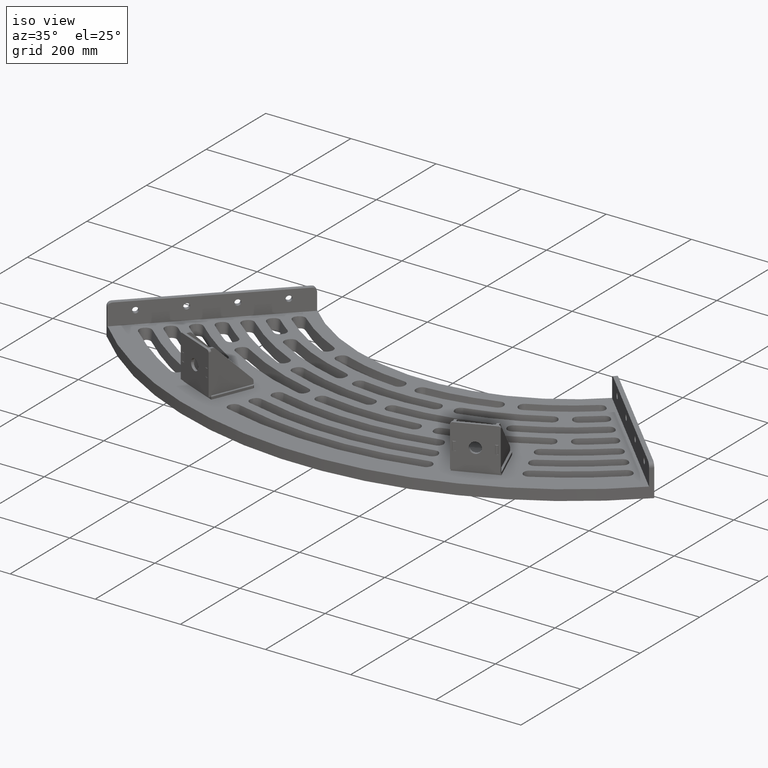
[diagram: clean part render]
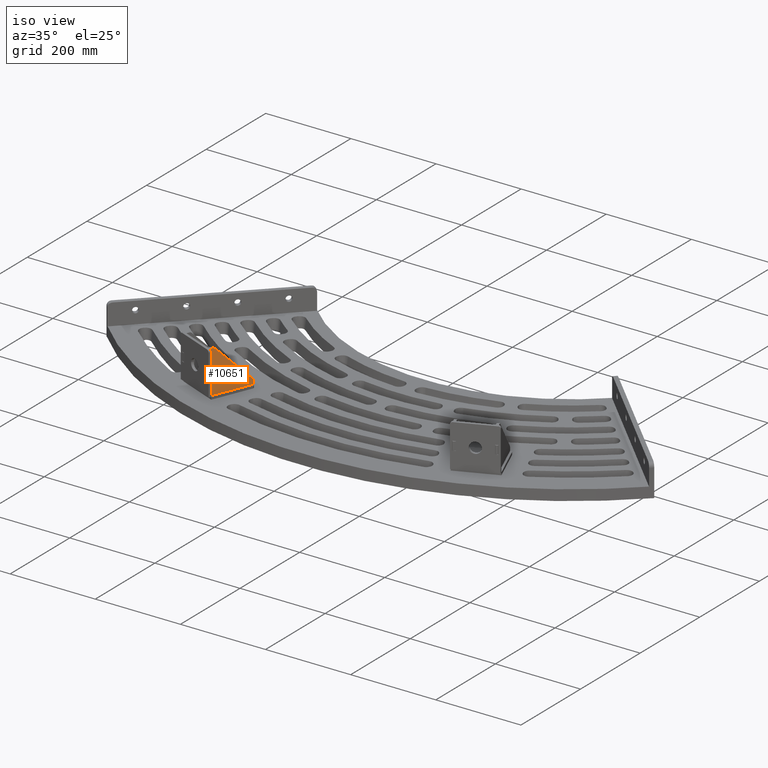
[diagram: same view with one face highlighted and labeled with its STEP entity id]
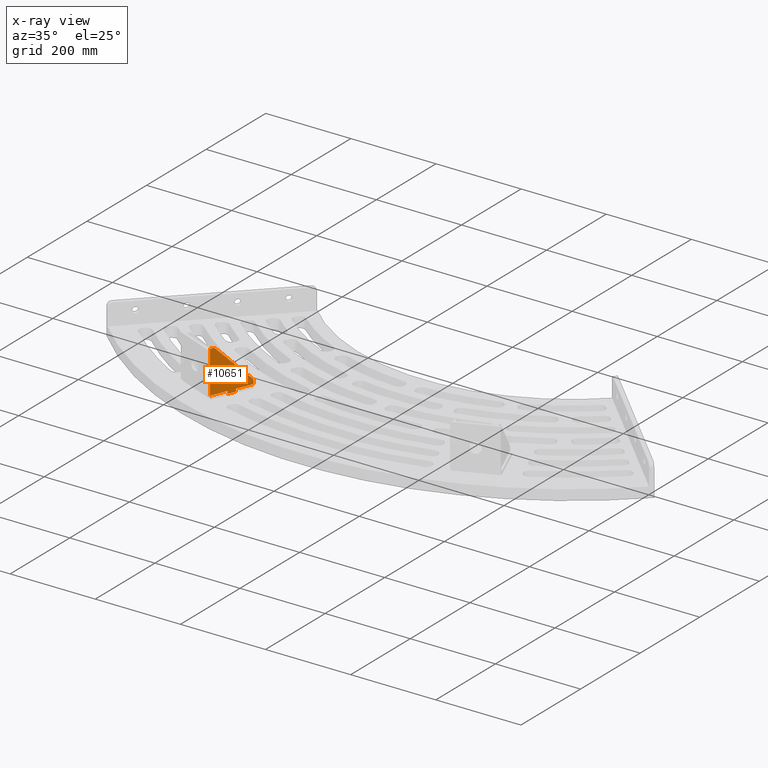
[diagram: x-ray of the same camera — body ghosted, the highlighted face saturated]
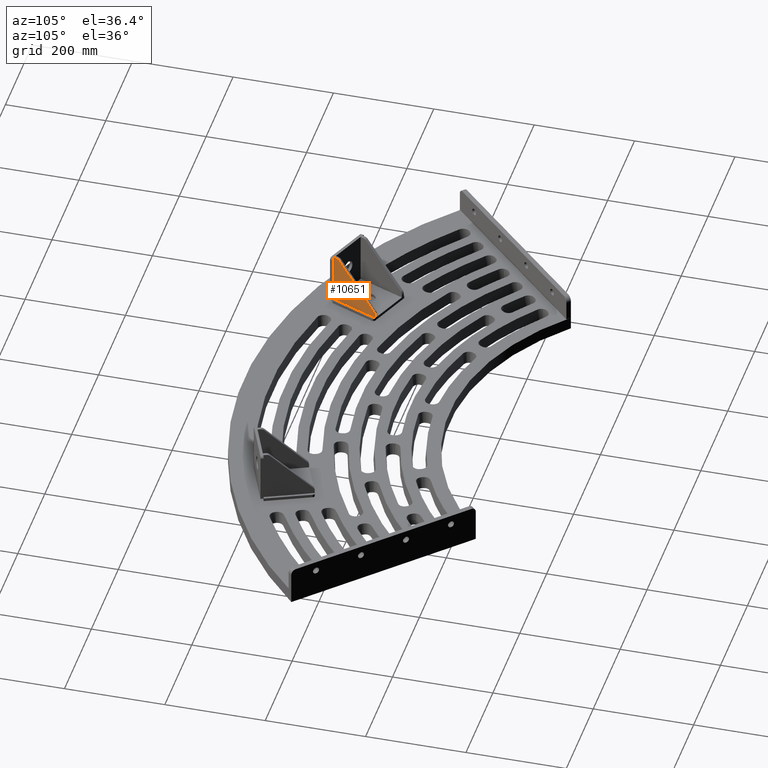
[diagram: same view with one face highlighted and labeled with its STEP entity id]
A machine part, iso view. The second image highlights one B-rep face of the part: STEP entity #10651.
The next image is the same camera in x-ray: the body ghosted, the highlighted face saturated — about 0% of this face is hidden behind the body in this view.
A second angle (auxiliary view) of the same face is appended — the face is thin or edge-on in the first view.
In plain terms, the highlighted planar face has unit normal (-0.9239, 0.3827, 0).
Its self-contained STEP definition (entity closure, byte-faithful):
#3 = EDGE_CURVE ( 'NONE', #6927, #11972, #8665, .T. ) ;
#21 = CARTESIAN_POINT ( 'NONE',  ( 99.99999999999997158, 9.999999999999991118, 1.942890293094023946E-13 ) ) ;
#30 = LINE ( 'NONE', #2830, #9793 ) ;
#90 = DIRECTION ( 'NONE',  ( -3.978414497066059672E-35, 5.700752635386218125E-32, 1.000000000000000000 ) ) ;
#106 = CARTESIAN_POINT ( 'NONE',  ( 39.99999999999970157, -4.999999999999997335, -1.665334536937734811E-13 ) ) ;
#159 = ORIENTED_EDGE ( 'NONE', *, *, #3751, .T. ) ;
#177 = CARTESIAN_POINT ( 'NONE',  ( 97.07106781186503497, 12.92893218813452272, 3.053113317719180486E-13 ) ) ;
#210 = EDGE_CURVE ( 'NONE', #10424, #8888, #1489, .T. ) ;
#326 = CARTESIAN_POINT ( 'NONE',  ( -5.000000000000004441, 58.99999999999997158, 1.110223024625156540E-13 ) ) ;
#358 = EDGE_CURVE ( 'NONE', #4559, #5488, #3684, .T. ) ;
#422 = CARTESIAN_POINT ( 'NONE',  ( -6.000000000000782485, 58.99999999999997158, -3.885780586188047891E-13 ) ) ;
#519 = VECTOR ( 'NONE', #4961, 1000.000000000000000 ) ;
#547 = ORIENTED_EDGE ( 'NONE', *, *, #8252, .F. ) ;
#647 = VERTEX_POINT ( 'NONE', #9103 ) ;
#699 = VECTOR ( 'NONE', #6743, 1000.000000000000000 ) ;
#703 = CARTESIAN_POINT ( 'NONE',  ( -5.000000000000559552, 41.00000000000000711, -2.775557561562891351E-13 ) ) ;
#727 = PLANE ( 'NONE',  #7112 ) ;
#828 = CARTESIAN_POINT ( 'NONE',  ( 89.99999999999963052, 5.857864376269037443, -8.326672684688674053E-14 ) ) ;
#850 = VERTEX_POINT ( 'NONE', #106 ) ;
#853 = DIRECTION ( 'NONE',  ( -1.000000000000000000, -3.620748295448003404E-32, 3.978414497066003544E-35 ) ) ;
#905 = CARTESIAN_POINT ( 'NONE',  ( 99.99999999999997158, 5.857864376269037443, 1.942890293094023946E-13 ) ) ;
#1165 = LINE ( 'NONE', #6879, #519 ) ;
#1253 = DIRECTION ( 'NONE',  ( -1.000000000000000000, 0.000000000000000000, 0.000000000000000000 ) ) ;
#1283 = EDGE_CURVE ( 'NONE', #11972, #10424, #8946, .T. ) ;
#1349 = VERTEX_POINT ( 'NONE', #2539 ) ;
#1489 = LINE ( 'NONE', #5279, #6400 ) ;
#1507 = CARTESIAN_POINT ( 'NONE',  ( 59.99999999999994316, -11.99999999999999645, -1.387778780781445676E-13 ) ) ;
#1915 = ORIENTED_EDGE ( 'NONE', *, *, #8299, .T. ) ;
#1979 = CARTESIAN_POINT ( 'NONE',  ( 5.857864376268673290, 99.99999999999998579, -1.665334536937734811E-13 ) ) ;
#2055 = CARTESIAN_POINT ( 'NONE',  ( 0.000000000000000000, 0.000000000000000000, 0.000000000000000000 ) ) ;
#2185 = ORIENTED_EDGE ( 'NONE', *, *, #6597, .T. ) ;
#2195 = DIRECTION ( 'NONE',  ( -1.000000000000000000, 0.000000000000000000, 0.000000000000000000 ) ) ;
#2232 = EDGE_CURVE ( 'NONE', #3571, #10714, #4008, .T. ) ;
#2416 = DIRECTION ( 'NONE',  ( -4.237045877651918877E-32, -1.000000000000000000, -4.005934284325450574E-32 ) ) ;
#2505 = LINE ( 'NONE', #1507, #4229 ) ;
#2539 = CARTESIAN_POINT ( 'NONE',  ( 59.99999999999994316, -4.999999999999997335, -1.387778780781445676E-13 ) ) ;
#2791 = EDGE_CURVE ( 'NONE', #10714, #3449, #1165, .T. ) ;
#2830 = CARTESIAN_POINT ( 'NONE',  ( -11.99999999999990052, 59.99999999999997158, -3.885780586188047891E-13 ) ) ;
#2852 = DIRECTION ( 'NONE',  ( -0.7071067811865483499, 0.7071067811865465735, -2.140574041746968964E-16 ) ) ;
#3025 = VECTOR ( 'NONE', #11329, 1000.000000000000000 ) ;
#3052 = VERTEX_POINT ( 'NONE', #905 ) ;
#3144 = EDGE_CURVE ( 'NONE', #850, #8888, #6560, .T. ) ;
#3259 = CIRCLE ( 'NONE', #4254, 1.000000000000000888 ) ;
#3279 = VECTOR ( 'NONE', #10773, 1000.000000000000000 ) ;
#3311 = VERTEX_POINT ( 'NONE', #422 ) ;
#3449 = VERTEX_POINT ( 'NONE', #9501 ) ;
#3571 = VERTEX_POINT ( 'NONE', #1979 ) ;
#3619 = VERTEX_POINT ( 'NONE', #177 ) ;
#3627 = AXIS2_PLACEMENT_3D ( 'NONE', #10883, #4255, #10021 ) ;
#3684 = LINE ( 'NONE', #5606, #9971 ) ;
#3709 = CARTESIAN_POINT ( 'NONE',  ( 39.99999999999970157, -11.99999999999999645, -1.665334536937734811E-13 ) ) ;
#3751 = EDGE_CURVE ( 'NONE', #850, #5488, #5587, .T. ) ;
#3887 = DIRECTION ( 'NONE',  ( -1.000000000000000000, 3.556183125752456121E-15, 0.000000000000000000 ) ) ;
#4008 = LINE ( 'NONE', #7787, #3279 ) ;
#4023 = DIRECTION ( 'NONE',  ( -1.000000000000000000, 0.000000000000000000, 0.000000000000000000 ) ) ;
#4127 = DIRECTION ( 'NONE',  ( -3.978414497066059672E-35, 5.700752635386218125E-32, 1.000000000000000000 ) ) ;
#4145 = EDGE_CURVE ( 'NONE', #8508, #3311, #9942, .T. ) ;
#4212 = CARTESIAN_POINT ( 'NONE',  ( 41.00000000000003553, -5.000000000000002665, -2.775557561562891351E-14 ) ) ;
#4229 = VECTOR ( 'NONE', #10887, 1000.000000000000000 ) ;
#4254 = AXIS2_PLACEMENT_3D ( 'NONE', #5937, #10727, #4023 ) ;
#4255 = DIRECTION ( 'NONE',  ( -3.978414497066059672E-35, 5.700752635386218125E-32, 1.000000000000000000 ) ) ;
#4319 = ORIENTED_EDGE ( 'NONE', *, *, #210, .T. ) ;
#4438 = ORIENTED_EDGE ( 'NONE', *, *, #358, .F. ) ;
#4559 = VERTEX_POINT ( 'NONE', #9694 ) ;
#4961 = DIRECTION ( 'NONE',  ( -4.237045877651918877E-32, -1.000000000000000000, -4.005934284325450574E-32 ) ) ;
#5061 = ORIENTED_EDGE ( 'NONE', *, *, #10677, .T. ) ;
#5194 = CARTESIAN_POINT ( 'NONE',  ( 39.99999999999970157, -7.806255641895631925E-15, -1.665334536937734811E-13 ) ) ;
#5279 = CARTESIAN_POINT ( 'NONE',  ( 0.000000000000000000, 0.000000000000000000, 0.000000000000000000 ) ) ;
#5283 = CARTESIAN_POINT ( 'NONE',  ( -5.000000000000004441, 59.99999999999997158, 1.110223024625156540E-13 ) ) ;
#5368 = ORIENTED_EDGE ( 'NONE', *, *, #9393, .T. ) ;
#5482 = DIRECTION ( 'NONE',  ( -1.000000000000000000, -3.620748295448003404E-32, 3.978414497066003544E-35 ) ) ;
#5488 = VERTEX_POINT ( 'NONE', #7077 ) ;
#5587 = CIRCLE ( 'NONE', #7359, 1.000000000000000888 ) ;
#5606 = CARTESIAN_POINT ( 'NONE',  ( 59.99999999999994316, -6.000000000000000888, -1.387778780781445676E-13 ) ) ;
#5713 = CIRCLE ( 'NONE', #11460, 1.000000000000000000 ) ;
#5814 = CIRCLE ( 'NONE', #3627, 10.00000000000000000 ) ;
#5847 = EDGE_CURVE ( 'NONE', #6725, #3052, #11448, .T. ) ;
#5937 = CARTESIAN_POINT ( 'NONE',  ( 58.99999999999960920, -4.999999999999997335, -1.665334536937734811E-13 ) ) ;
#6037 = EDGE_LOOP ( 'NONE', ( #7909, #1915, #5061, #8701, #12249, #7431, #547, #12252, #8727, #11563, #11686, #9300, #4319, #8580, #159, #4438, #5368, #2185, #11830 ) ) ;
#6135 = VECTOR ( 'NONE', #7203, 1000.000000000000000 ) ;
#6164 = EDGE_CURVE ( 'NONE', #6375, #3571, #5814, .T. ) ;
#6226 = DIRECTION ( 'NONE',  ( -4.237045877651918877E-32, -1.000000000000000000, -4.005934284325450574E-32 ) ) ;
#6375 = VERTEX_POINT ( 'NONE', #11204 ) ;
#6400 = VECTOR ( 'NONE', #12062, 1000.000000000000000 ) ;
#6445 = CARTESIAN_POINT ( 'NONE',  ( 0.000000000000000000, 99.99999999999998579, 0.000000000000000000 ) ) ;
#6542 = CARTESIAN_POINT ( 'NONE',  ( 99.99999999999997158, -2.602085213965210642E-15, 1.942890293094023946E-13 ) ) ;
#6560 = LINE ( 'NONE', #3709, #699 ) ;
#6597 = EDGE_CURVE ( 'NONE', #1349, #647, #2505, .T. ) ;
#6692 = LINE ( 'NONE', #11293, #10502 ) ;
#6695 = EDGE_CURVE ( 'NONE', #3311, #10915, #10836, .T. ) ;
#6725 = VERTEX_POINT ( 'NONE', #6542 ) ;
#6743 = DIRECTION ( 'NONE',  ( 4.237045877651918877E-32, 1.000000000000000000, 4.005934284325450574E-32 ) ) ;
#6879 = CARTESIAN_POINT ( 'NONE',  ( 0.000000000000000000, 0.000000000000000000, 0.000000000000000000 ) ) ;
#6914 = EDGE_CURVE ( 'NONE', #10915, #6927, #5713, .T. ) ;
#6927 = VERTEX_POINT ( 'NONE', #11577 ) ;
#7077 = CARTESIAN_POINT ( 'NONE',  ( 41.00000000000003553, -6.000000000000003553, -2.775557561562891351E-14 ) ) ;
#7112 = AXIS2_PLACEMENT_3D ( 'NONE', #10484, #8447, #853 ) ;
#7203 = DIRECTION ( 'NONE',  ( 1.000000000000000000, 3.620748295448003404E-32, -3.978414497066003544E-35 ) ) ;
#7359 = AXIS2_PLACEMENT_3D ( 'NONE', #4212, #8925, #10848 ) ;
#7431 = ORIENTED_EDGE ( 'NONE', *, *, #2791, .T. ) ;
#7502 = CARTESIAN_POINT ( 'NONE',  ( 0.000000000000000000, 40.00000000000000711, 0.000000000000000000 ) ) ;
#7611 = VECTOR ( 'NONE', #6226, 1000.000000000000000 ) ;
#7666 = DIRECTION ( 'NONE',  ( -3.978414497066059672E-35, 5.700752635386218125E-32, 1.000000000000000000 ) ) ;
#7787 = CARTESIAN_POINT ( 'NONE',  ( 0.000000000000000000, 99.99999999999998579, 0.000000000000000000 ) ) ;
#7815 = VECTOR ( 'NONE', #11576, 1000.000000000000000 ) ;
#7909 = ORIENTED_EDGE ( 'NONE', *, *, #5847, .T. ) ;
#7951 = CARTESIAN_POINT ( 'NONE',  ( 0.000000000000000000, 0.000000000000000000, 0.000000000000000000 ) ) ;
#8162 = AXIS2_PLACEMENT_3D ( 'NONE', #326, #4127, #1253 ) ;
#8252 = EDGE_CURVE ( 'NONE', #8508, #3449, #30, .T. ) ;
#8281 = CARTESIAN_POINT ( 'NONE',  ( -6.000000000000782485, 41.00000000000000711, -3.885780586188047891E-13 ) ) ;
#8299 = EDGE_CURVE ( 'NONE', #3052, #3619, #11759, .T. ) ;
#8396 = AXIS2_PLACEMENT_3D ( 'NONE', #828, #90, #3887 ) ;
#8420 = DIRECTION ( 'NONE',  ( 1.000000000000000000, 3.620748295448003404E-32, -3.978414497066003544E-35 ) ) ;
#8447 = DIRECTION ( 'NONE',  ( -3.978414497066003544E-35, -5.700752635386218125E-32, -1.000000000000000000 ) ) ;
#8508 = VERTEX_POINT ( 'NONE', #5283 ) ;
#8580 = ORIENTED_EDGE ( 'NONE', *, *, #3144, .F. ) ;
#8665 = LINE ( 'NONE', #9714, #7815 ) ;
#8701 = ORIENTED_EDGE ( 'NONE', *, *, #6164, .T. ) ;
#8727 = ORIENTED_EDGE ( 'NONE', *, *, #6695, .T. ) ;
#8888 = VERTEX_POINT ( 'NONE', #5194 ) ;
#8925 = DIRECTION ( 'NONE',  ( -3.978414497066059672E-35, 5.700752635386218125E-32, 1.000000000000000000 ) ) ;
#8946 = LINE ( 'NONE', #7951, #9015 ) ;
#9015 = VECTOR ( 'NONE', #2416, 1000.000000000000000 ) ;
#9103 = CARTESIAN_POINT ( 'NONE',  ( 59.99999999999994316, -2.602085213965210642E-15, -1.387778780781445676E-13 ) ) ;
#9300 = ORIENTED_EDGE ( 'NONE', *, *, #1283, .T. ) ;
#9393 = EDGE_CURVE ( 'NONE', #4559, #1349, #3259, .T. ) ;
#9501 = CARTESIAN_POINT ( 'NONE',  ( 0.000000000000000000, 59.99999999999997158, 0.000000000000000000 ) ) ;
#9694 = CARTESIAN_POINT ( 'NONE',  ( 58.99999999999960920, -6.000000000000000888, -1.665334536937734811E-13 ) ) ;
#9714 = CARTESIAN_POINT ( 'NONE',  ( -11.99999999999990052, 40.00000000000000711, -4.440892098500626162E-13 ) ) ;
#9793 = VECTOR ( 'NONE', #8420, 1000.000000000000000 ) ;
#9942 = CIRCLE ( 'NONE', #8162, 1.000000000000000000 ) ;
#9971 = VECTOR ( 'NONE', #5482, 1000.000000000000000 ) ;
#10021 = DIRECTION ( 'NONE',  ( -1.000000000000000000, 2.775557561562891351E-15, 0.000000000000000000 ) ) ;
#10082 = CARTESIAN_POINT ( 'NONE',  ( -6.000000000000782485, 40.00000000000000711, -3.885780586188047891E-13 ) ) ;
#10424 = VERTEX_POINT ( 'NONE', #2055 ) ;
#10484 = CARTESIAN_POINT ( 'NONE',  ( 0.000000000000000000, 0.000000000000000000, 0.000000000000000000 ) ) ;
#10502 = VECTOR ( 'NONE', #2852, 1000.000000000000114 ) ;
#10651 = ADVANCED_FACE ( 'NONE', ( #11234 ), #727, .F. ) ;
#10677 = EDGE_CURVE ( 'NONE', #3619, #6375, #6692, .T. ) ;
#10714 = VERTEX_POINT ( 'NONE', #6445 ) ;
#10727 = DIRECTION ( 'NONE',  ( -3.978414497066059672E-35, 5.700752635386218125E-32, 1.000000000000000000 ) ) ;
#10773 = DIRECTION ( 'NONE',  ( -1.000000000000000000, -3.620748295448003404E-32, 3.978414497066003544E-35 ) ) ;
#10836 = LINE ( 'NONE', #10082, #7611 ) ;
#10848 = DIRECTION ( 'NONE',  ( -1.000000000000000000, 0.000000000000000000, 0.000000000000000000 ) ) ;
#10883 = CARTESIAN_POINT ( 'NONE',  ( 5.857864376268673290, 90.00000000000001421, -1.665334536937734811E-13 ) ) ;
#10887 = DIRECTION ( 'NONE',  ( 4.237045877651918877E-32, 1.000000000000000000, 4.005934284325450574E-32 ) ) ;
#10915 = VERTEX_POINT ( 'NONE', #8281 ) ;
#10930 = CARTESIAN_POINT ( 'NONE',  ( 0.000000000000000000, 0.000000000000000000, 0.000000000000000000 ) ) ;
#11204 = CARTESIAN_POINT ( 'NONE',  ( 12.92893218813440015, 97.07106781186548972, 2.775557561562891351E-13 ) ) ;
#11234 = FACE_OUTER_BOUND ( 'NONE', #6037, .T. ) ;
#11293 = CARTESIAN_POINT ( 'NONE',  ( 9.999999999999786837, 99.99999999999998579, 2.775557561562891351E-13 ) ) ;
#11329 = DIRECTION ( 'NONE',  ( 4.237045877651918877E-32, 1.000000000000000000, 4.005934284325450574E-32 ) ) ;
#11448 = LINE ( 'NONE', #21, #3025 ) ;
#11460 = AXIS2_PLACEMENT_3D ( 'NONE', #703, #7666, #2195 ) ;
#11473 = EDGE_CURVE ( 'NONE', #647, #6725, #11991, .T. ) ;
#11563 = ORIENTED_EDGE ( 'NONE', *, *, #6914, .T. ) ;
#11576 = DIRECTION ( 'NONE',  ( 1.000000000000000000, 3.620748295448003404E-32, -3.978414497066003544E-35 ) ) ;
#11577 = CARTESIAN_POINT ( 'NONE',  ( -5.000000000000559552, 40.00000000000000711, -2.775557561562891351E-13 ) ) ;
#11686 = ORIENTED_EDGE ( 'NONE', *, *, #3, .T. ) ;
#11759 = CIRCLE ( 'NONE', #8396, 9.999999999999994671 ) ;
#11830 = ORIENTED_EDGE ( 'NONE', *, *, #11473, .T. ) ;
#11972 = VERTEX_POINT ( 'NONE', #7502 ) ;
#11991 = LINE ( 'NONE', #10930, #6135 ) ;
#12062 = DIRECTION ( 'NONE',  ( 1.000000000000000000, 3.620748295448003404E-32, -3.978414497066003544E-35 ) ) ;
#12249 = ORIENTED_EDGE ( 'NONE', *, *, #2232, .T. ) ;
#12252 = ORIENTED_EDGE ( 'NONE', *, *, #4145, .T. ) ;